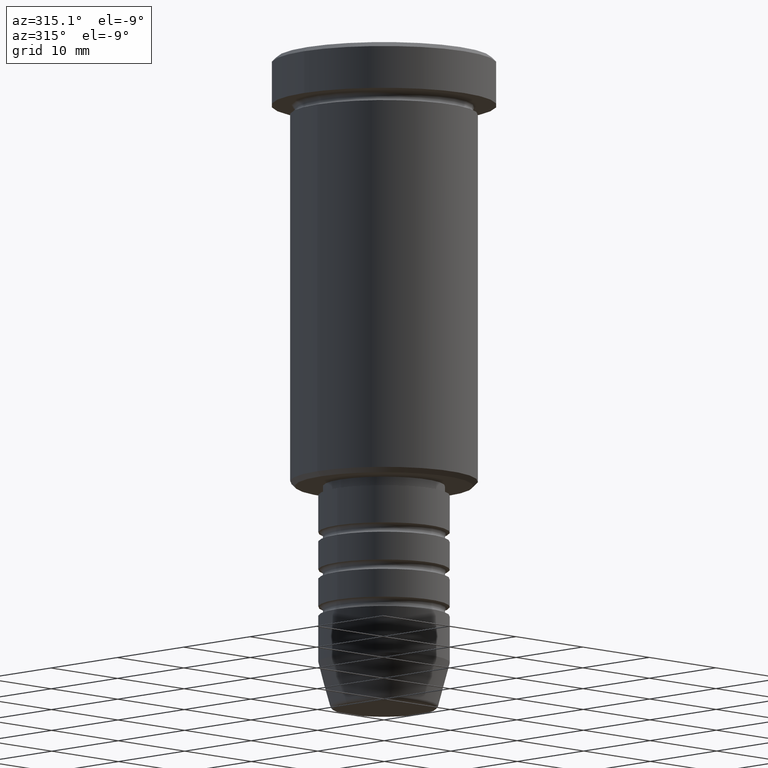
[diagram: clean part render]
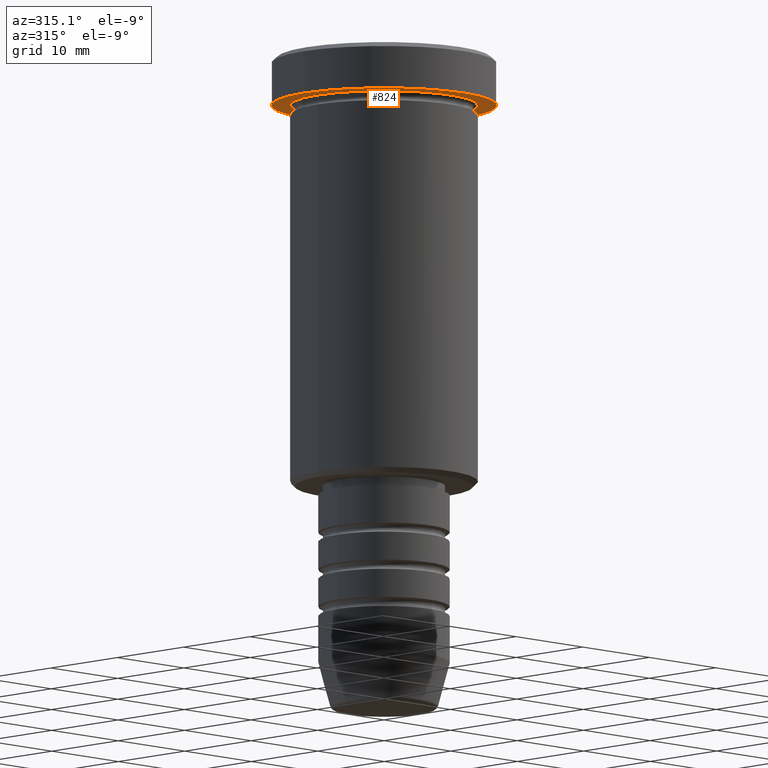
[diagram: same view with one face highlighted and labeled with its STEP entity id]
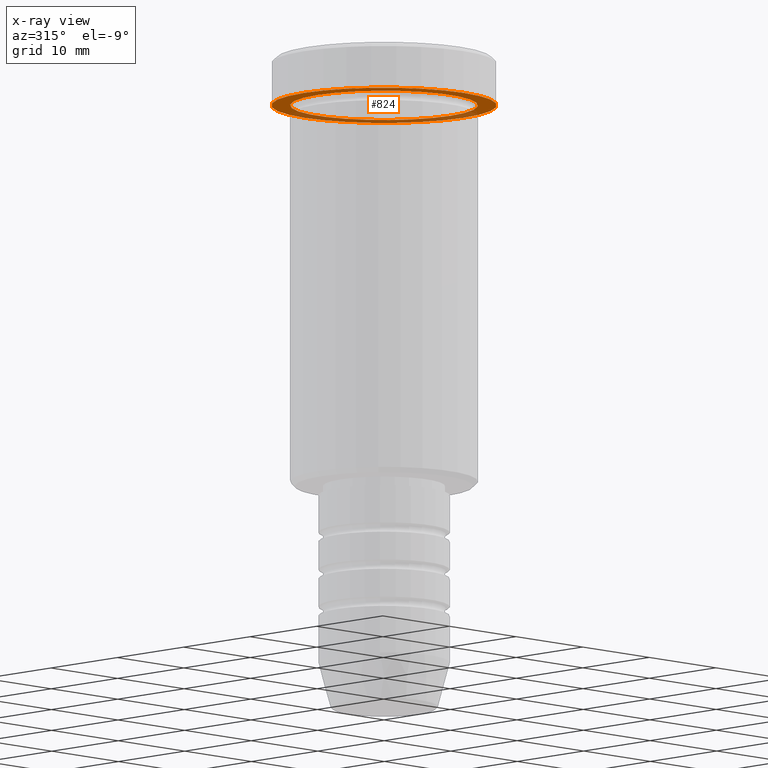
[diagram: x-ray of the same camera — body ghosted, the highlighted face saturated]
A machine part, auxiliary view. The second image highlights one B-rep face of the part: STEP entity #824.
The next image is the same camera in x-ray: the body ghosted, the highlighted face saturated — about 34% of this face is hidden behind the body in this view.
In plain terms, the highlighted planar face has unit normal (0, 0, -1).
Its self-contained STEP definition (entity closure, byte-faithful):
#28 = VERTEX_POINT ( 'NONE', #438 ) ;
#48 = AXIS2_PLACEMENT_3D ( 'NONE', #696, #1061, #64 ) ;
#64 = DIRECTION ( 'NONE',  ( -1.000000000000000000, 0.000000000000000000, -0.000000000000000000 ) ) ;
#69 = EDGE_CURVE ( 'NONE', #28, #187, #829, .T. ) ;
#163 = DIRECTION ( 'NONE',  ( 1.000000000000000000, 0.000000000000000000, 0.000000000000000000 ) ) ;
#165 = AXIS2_PLACEMENT_3D ( 'NONE', #596, #399, #324 ) ;
#187 = VERTEX_POINT ( 'NONE', #770 ) ;
#202 = DIRECTION ( 'NONE',  ( -0.000000000000000000, -0.000000000000000000, 1.000000000000000000 ) ) ;
#209 = CARTESIAN_POINT ( 'NONE',  ( 0.000000000000000000, 0.000000000000000000, -5.000000000000000000 ) ) ;
#306 = ORIENTED_EDGE ( 'NONE', *, *, #467, .T. ) ;
#318 = CIRCLE ( 'NONE', #971, 12.00000000000000000 ) ;
#324 = DIRECTION ( 'NONE',  ( 1.000000000000000000, 0.000000000000000000, 0.000000000000000000 ) ) ;
#399 = DIRECTION ( 'NONE',  ( -0.000000000000000000, -0.000000000000000000, 1.000000000000000000 ) ) ;
#430 = FACE_OUTER_BOUND ( 'NONE', #471, .T. ) ;
#438 = CARTESIAN_POINT ( 'NONE',  ( -12.00000000000000000, 1.469576158976823947E-15, -5.000000000000000000 ) ) ;
#467 = EDGE_CURVE ( 'NONE', #628, #1068, #555, .T. ) ;
#471 = EDGE_LOOP ( 'NONE', ( #679, #1088 ) ) ;
#510 = AXIS2_PLACEMENT_3D ( 'NONE', #677, #1027, #920 ) ;
#546 = CIRCLE ( 'NONE', #510, 10.00000000000000000 ) ;
#555 = CIRCLE ( 'NONE', #1005, 10.00000000000000000 ) ;
#596 = CARTESIAN_POINT ( 'NONE',  ( 0.000000000000000000, 0.000000000000000000, -5.000000000000000000 ) ) ;
#628 = VERTEX_POINT ( 'NONE', #929 ) ;
#655 = DIRECTION ( 'NONE',  ( -1.000000000000000000, 0.000000000000000000, 0.000000000000000000 ) ) ;
#677 = CARTESIAN_POINT ( 'NONE',  ( 0.000000000000000000, 0.000000000000000000, -5.000000000000000000 ) ) ;
#679 = ORIENTED_EDGE ( 'NONE', *, *, #1017, .F. ) ;
#689 = EDGE_CURVE ( 'NONE', #1068, #628, #546, .T. ) ;
#696 = CARTESIAN_POINT ( 'NONE',  ( 0.000000000000000000, 12.00000000000000000, -5.000000000000000000 ) ) ;
#700 = FACE_BOUND ( 'NONE', #961, .T. ) ;
#734 = CARTESIAN_POINT ( 'NONE',  ( 10.00000000000000000, 1.224646799147353256E-15, -4.999999999999999112 ) ) ;
#770 = CARTESIAN_POINT ( 'NONE',  ( 12.00000000000000000, 0.000000000000000000, -5.000000000000000000 ) ) ;
#778 = PLANE ( 'NONE',  #48 ) ;
#824 = ADVANCED_FACE ( 'NONE', ( #700, #430 ), #778, .T. ) ;
#829 = CIRCLE ( 'NONE', #165, 12.00000000000000000 ) ;
#889 = ORIENTED_EDGE ( 'NONE', *, *, #689, .T. ) ;
#920 = DIRECTION ( 'NONE',  ( -1.000000000000000000, 0.000000000000000000, 0.000000000000000000 ) ) ;
#929 = CARTESIAN_POINT ( 'NONE',  ( -10.00000000000000000, 0.000000000000000000, -4.999999999999999112 ) ) ;
#961 = EDGE_LOOP ( 'NONE', ( #306, #889 ) ) ;
#971 = AXIS2_PLACEMENT_3D ( 'NONE', #1165, #1071, #163 ) ;
#1005 = AXIS2_PLACEMENT_3D ( 'NONE', #209, #202, #655 ) ;
#1017 = EDGE_CURVE ( 'NONE', #187, #28, #318, .T. ) ;
#1027 = DIRECTION ( 'NONE',  ( -0.000000000000000000, -0.000000000000000000, 1.000000000000000000 ) ) ;
#1061 = DIRECTION ( 'NONE',  ( 0.000000000000000000, 0.000000000000000000, -1.000000000000000000 ) ) ;
#1068 = VERTEX_POINT ( 'NONE', #734 ) ;
#1071 = DIRECTION ( 'NONE',  ( -0.000000000000000000, -0.000000000000000000, 1.000000000000000000 ) ) ;
#1088 = ORIENTED_EDGE ( 'NONE', *, *, #69, .F. ) ;
#1165 = CARTESIAN_POINT ( 'NONE',  ( 0.000000000000000000, 0.000000000000000000, -5.000000000000000000 ) ) ;